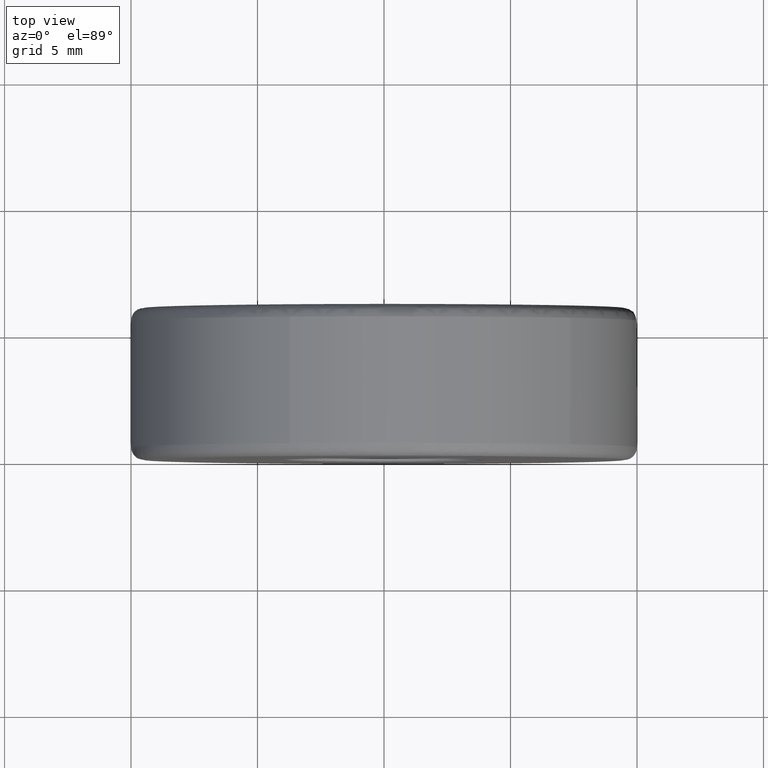
[diagram: clean part render]
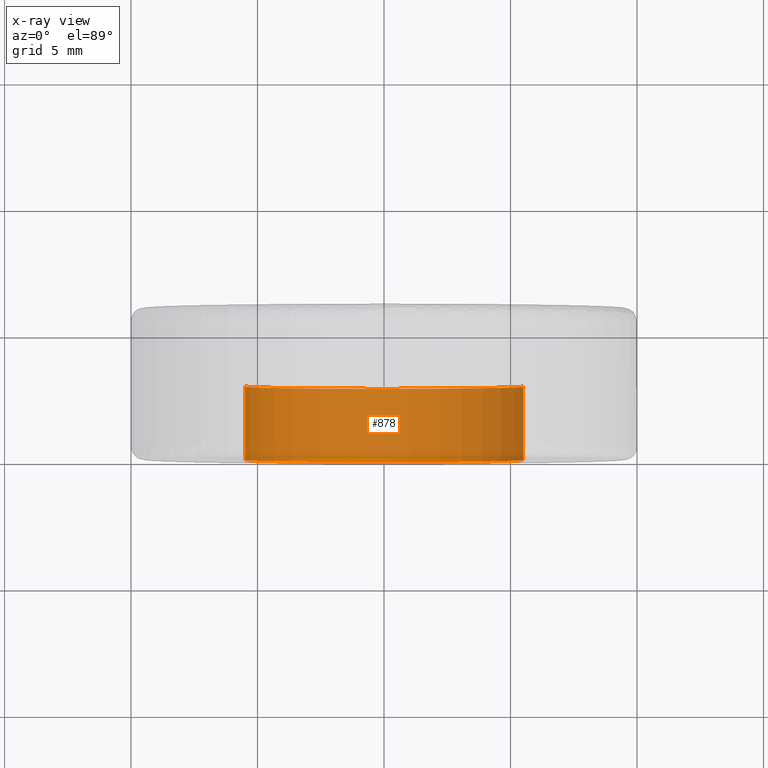
[diagram: x-ray — body ghosted, one internal face saturated and labeled with its STEP entity id]
A machine part, top view, then the same camera in x-ray: the body is ghosted and one INTERNAL B-rep face — a face not visible from any outside direction — is saturated and labeled: STEP entity #878.
In plain terms, the highlighted face is a freeform B-spline surface patch.
Its self-contained STEP definition (entity closure, byte-faithful):
#772=CARTESIAN_POINT('',(-5.461831733296426,2.972500000000002,0.731559430129518));
#773=CARTESIAN_POINT('',(-5.466670716485432,2.972500000000002,0.690849576597865));
#774=CARTESIAN_POINT('',(-5.490095761121817,2.972500000000002,0.493777154795257));
#775=CARTESIAN_POINT('',(-5.499722739304485,2.972500000000001,0.336377452837062));
#776=CARTESIAN_POINT('',(-5.836100192141547,2.972500000000002,-5.163345286467423));
#777=CARTESIAN_POINT('',(-0.336377452837062,2.972500000000001,-5.499722739304485));
#778=CARTESIAN_POINT('',(5.163345286467423,2.972500000000002,-5.836100192141547));
#779=CARTESIAN_POINT('',(5.502141884363709,2.972500000000002,-0.296824780743092));
#780=CARTESIAN_POINT('',(5.504546659334277,2.972500000000001,-0.257507057521716));
#781=CARTESIAN_POINT('',(-5.461831733296426,-0.074312500000000,0.731559430129518));
#782=CARTESIAN_POINT('',(-5.466670716485432,-0.074312500000000,0.690849576597865));
#783=CARTESIAN_POINT('',(-5.490095761121817,-0.074312500000000,0.493777154795257));
#784=CARTESIAN_POINT('',(-5.499722739304485,-0.074312500000000,0.336377452837062));
#785=CARTESIAN_POINT('',(-5.836100192141547,-0.074312500000000,-5.163345286467423));
#786=CARTESIAN_POINT('',(-0.336377452837062,-0.074312500000000,-5.499722739304485));
#787=CARTESIAN_POINT('',(5.163345286467423,-0.074312500000000,-5.836100192141547));
#788=CARTESIAN_POINT('',(5.502141884363709,-0.074312500000000,-0.296824780743092));
#789=CARTESIAN_POINT('',(5.504546659334277,-0.074312500000000,-0.257507057521716));
#797=(BOUNDED_SURFACE()B_SPLINE_SURFACE(2,1,((#772,#781),(#773,#782),(#774,#783),(#775,#784),(#776,#785),(#777,#786),(#778,#787),(#779,#788),(#780,#789)),.UNSPECIFIED.,.F.,.F.,.U.)B_SPLINE_SURFACE_WITH_KNOTS((3,1,2,2,1,3),(2,2),(0.0,0.093109314644054,0.458279991232175,9.587546905935188,18.716813820638201,18.809942103778511),(0.0,3.046812500000002),.UNSPECIFIED.)GEOMETRIC_REPRESENTATION_ITEM()RATIONAL_B_SPLINE_SURFACE(((0.972009324429035,0.972009324429035),(0.974757562612081,0.974757562612081),(0.988284271247462,0.988284271247462),(1.0,1.0),(0.707106781186548,0.707106781186548),(1.0,1.0),(0.707106781186548,0.707106781186548),(1.002987823980434,1.002987823980434),(1.005975647960869,1.005975647960869)))REPRESENTATION_ITEM('')SURFACE());
#798=CARTESIAN_POINT('',(-5.471483450926576,2.900000000000038,0.650360550902610));
#799=VERTEX_POINT('',#798);
#800=CARTESIAN_POINT('',(0.0,2.900000000000000,-5.510000000000000));
#801=VERTEX_POINT('',#800);
#802=CARTESIAN_POINT('',(-5.471483450926576,2.900000000000037,0.650360550902610));
#803=CARTESIAN_POINT('',(-5.510000000000001,2.900000000000000,0.326320815533623));
#804=CARTESIAN_POINT('',(-5.510000000000000,2.900000000000000,0.0));
#805=CARTESIAN_POINT('',(-5.510000000000000,2.900000000000000,-5.510000000000000));
#806=CARTESIAN_POINT('',(0.0,2.900000000000000,-5.510000000000000));
#814=(BOUNDED_CURVE()B_SPLINE_CURVE(2,(#802,#803,#804,#805,#806),.UNSPECIFIED.,.F.,.U.)B_SPLINE_CURVE_WITH_KNOTS((3,2,3),(0.229562723154360,0.250000000000000,0.500000000000000),.UNSPECIFIED.)CURVE()GEOMETRIC_REPRESENTATION_ITEM()RATIONAL_B_SPLINE_CURVE((0.956027243490569,0.976056240803596,1.0,0.707106781186548,1.0))REPRESENTATION_ITEM(''));
#815=EDGE_CURVE('',#799,#801,#814,.T.);
#816=ORIENTED_EDGE('',*,*,#815,.F.);
#817=CARTESIAN_POINT('',(-5.471483439350035,4.968999E-017,0.650360648297273));
#818=VERTEX_POINT('',#817);
#819=CARTESIAN_POINT('',(-5.471483450926576,2.900000000000038,0.650360550902610));
#820=CARTESIAN_POINT('',(-5.471483439350035,4.968999E-017,0.650360648297273));
#821=QUASI_UNIFORM_CURVE('',1,(#819,#820),.UNSPECIFIED.,.F.,.U.);
#822=EDGE_CURVE('',#799,#818,#821,.T.);
#823=ORIENTED_EDGE('',*,*,#822,.T.);
#824=CARTESIAN_POINT('',(0.0,0.0,-5.510000000000000));
#825=VERTEX_POINT('',#824);
#826=CARTESIAN_POINT('',(-5.471483439350035,4.968999E-017,0.650360648297273));
#827=CARTESIAN_POINT('',(-5.509999999999999,0.0,0.326320864745755));
#828=CARTESIAN_POINT('',(-5.510000000000000,0.0,0.0));
#829=CARTESIAN_POINT('',(-5.510000000000000,0.0,-5.510000000000000));
#830=CARTESIAN_POINT('',(0.0,0.0,-5.510000000000000));
#838=(BOUNDED_CURVE()B_SPLINE_CURVE(2,(#826,#827,#828,#829,#830),.UNSPECIFIED.,.F.,.U.)B_SPLINE_CURVE_WITH_KNOTS((3,2,3),(0.229562720146032,0.250000000000000,0.500000000000000),.UNSPECIFIED.)CURVE()GEOMETRIC_REPRESENTATION_ITEM()RATIONAL_B_SPLINE_CURVE((0.956027237594108,0.976056237279120,1.0,0.707106781186548,1.0))REPRESENTATION_ITEM(''));
#839=EDGE_CURVE('',#818,#825,#838,.T.);
#840=ORIENTED_EDGE('',*,*,#839,.T.);
#841=CARTESIAN_POINT('',(5.499723241735330,2.151057E-016,-0.336369237964003));
#842=VERTEX_POINT('',#841);
#843=CARTESIAN_POINT('',(0.0,0.0,-5.510000000000000));
#844=CARTESIAN_POINT('',(5.183298185344638,0.0,-5.510000000000000));
#845=CARTESIAN_POINT('',(5.499723241735330,2.151057E-016,-0.336369237964003));
#853=(BOUNDED_CURVE()B_SPLINE_CURVE(2,(#843,#844,#845),.UNSPECIFIED.,.F.,.U.)B_SPLINE_CURVE_WITH_KNOTS((3,3),(0.500000000000000,0.739333219973188),.UNSPECIFIED.)CURVE()GEOMETRIC_REPRESENTATION_ITEM()RATIONAL_B_SPLINE_CURVE((1.0,0.719603691332260,0.976072594040888))REPRESENTATION_ITEM(''));
#854=EDGE_CURVE('',#825,#842,#853,.T.);
#855=ORIENTED_EDGE('',*,*,#854,.T.);
#856=CARTESIAN_POINT('',(5.499723247864401,2.900000000000051,-0.336369137749630));
#857=VERTEX_POINT('',#856);
#858=CARTESIAN_POINT('',(5.499723247864401,2.900000000000051,-0.336369137749630));
#859=CARTESIAN_POINT('',(5.499723241735330,2.151057E-016,-0.336369237964003));
#860=QUASI_UNIFORM_CURVE('',1,(#858,#859),.UNSPECIFIED.,.F.,.U.);
#861=EDGE_CURVE('',#857,#842,#860,.T.);
#862=ORIENTED_EDGE('',*,*,#861,.F.);
#863=CARTESIAN_POINT('',(0.0,2.900000000000000,-5.510000000000000));
#864=CARTESIAN_POINT('',(5.183298279969684,2.900000000000000,-5.510000000000000));
#865=CARTESIAN_POINT('',(5.499723247864402,2.900000000000052,-0.336369137749630));
#873=(BOUNDED_CURVE()B_SPLINE_CURVE(2,(#863,#864,#865),.UNSPECIFIED.,.F.,.U.)B_SPLINE_CURVE_WITH_KNOTS((3,3),(0.500000000000000,0.739333223117287),.UNSPECIFIED.)CURVE()GEOMETRIC_REPRESENTATION_ITEM()RATIONAL_B_SPLINE_CURVE((1.0,0.719603687648719,0.976072600779307))REPRESENTATION_ITEM(''));
#874=EDGE_CURVE('',#801,#857,#873,.T.);
#875=ORIENTED_EDGE('',*,*,#874,.F.);
#876=EDGE_LOOP('',(#816,#823,#840,#855,#862,#875));
#877=FACE_OUTER_BOUND('',#876,.T.);
#878=ADVANCED_FACE('',(#877),#797,.F.);